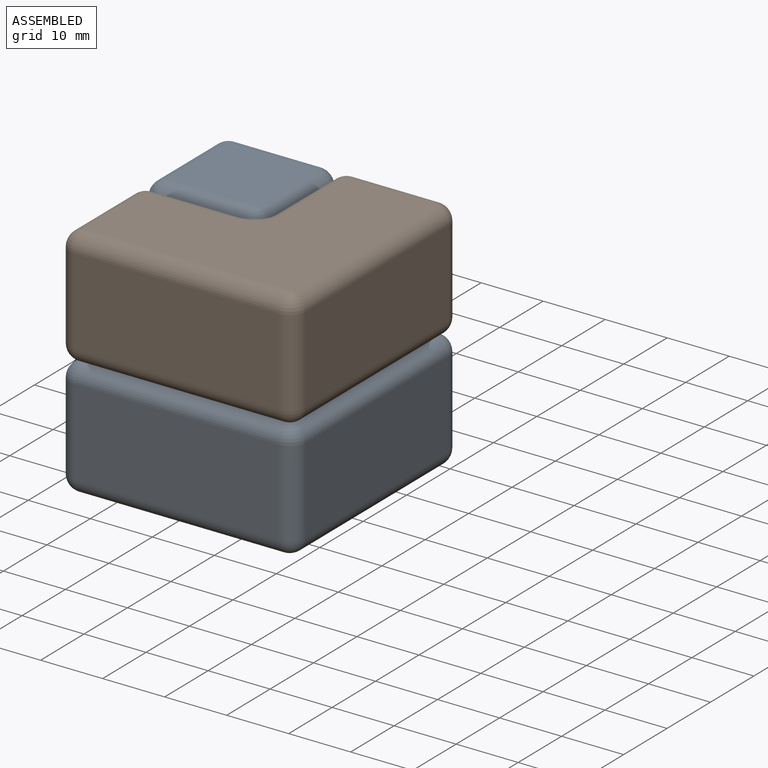
[diagram: assembled view]
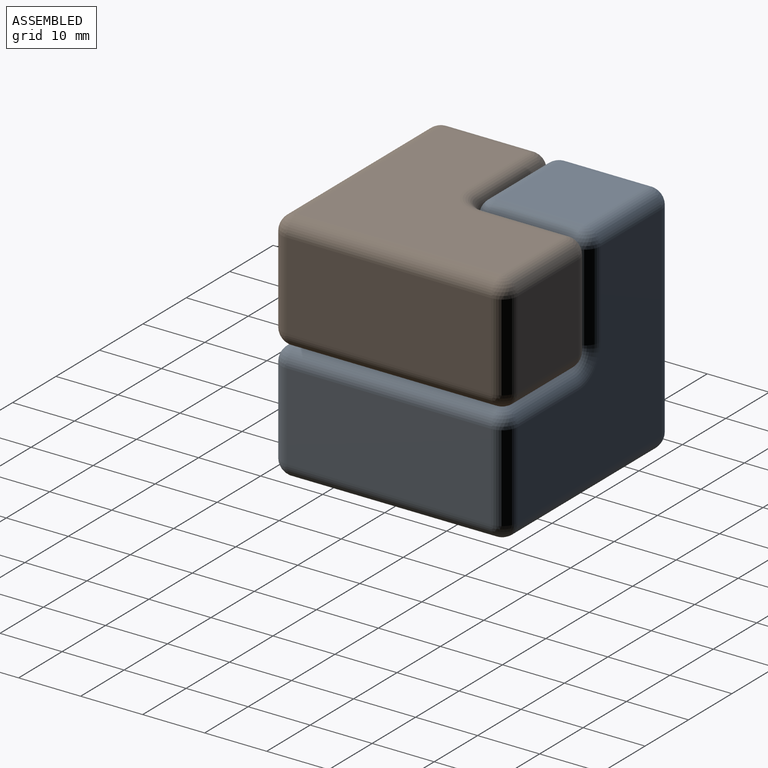
[diagram: assembled view, second angle]
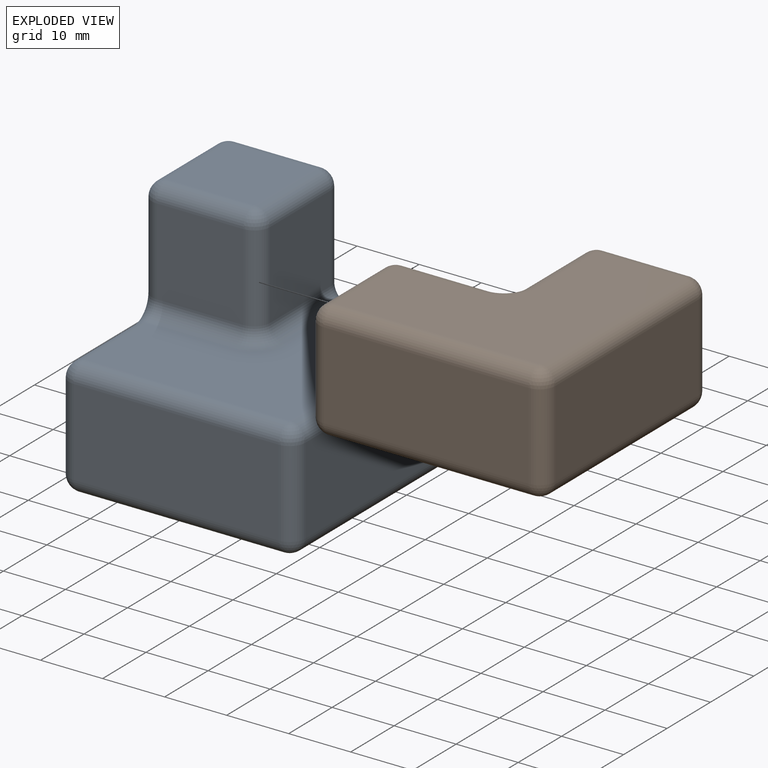
[diagram: exploded view]
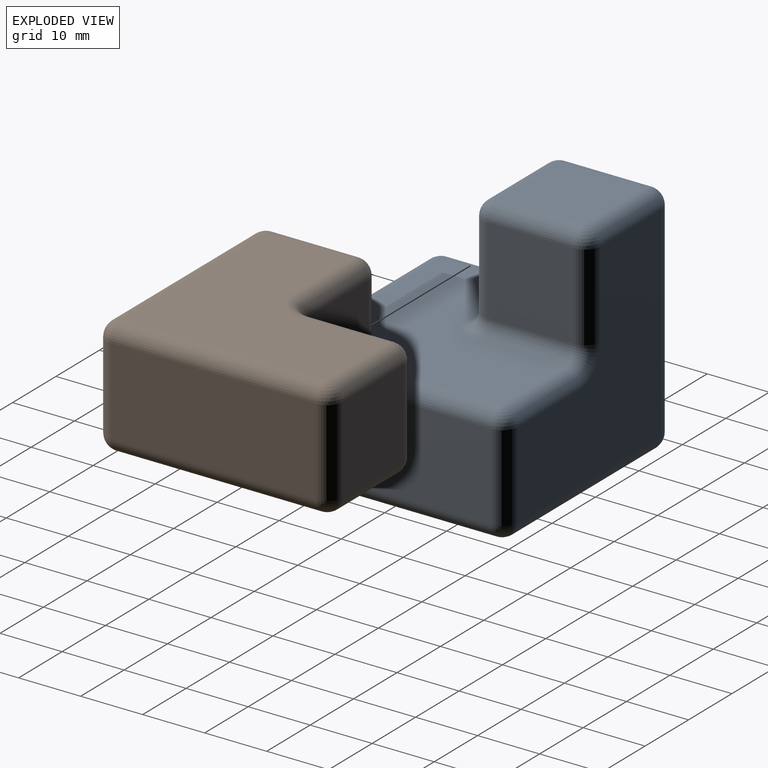
[diagram: exploded view, second angle]
ASSEMBLY  parts=2 mates=2
PART A: 44 faces, bbox 38.1x38.1x38.1 mm
  f0: plane 33.02x33.02mm, normal (0,0,1), area 733mm2, adj f18,f19,f30,f31,f36,f39,f40
  f1: plane 33.02x33.02mm, normal (-1,0,0), area 733mm2, adj f10,f14,f19,f20,f25,f27,f28
  f2: plane 33.02x13.97mm, normal (0,-1,0), area 461.3mm2, adj f9,f10,f17,f18
  f3: plane 33.02x13.97mm, normal (1,0,0), area 461.3mm2, adj f16,f17,f29,f30
  f4: plane 33.02x33.02mm, normal (0,1,0), area 733mm2, adj f15,f28,f29,f38,f39,f42,f43
  f5: plane 33.02x33.02mm, normal (0,0,-1), area 1090.3mm2, adj f9,f14,f15,f16
  f6: plane 13.97x13.97mm, normal (0,-1,0), area 195.2mm2, adj f20,f26,f31,f32
  f7: plane 13.97x13.97mm, normal (1,0,0), area 195.2mm2, adj f32,f37,f40,f43
  f8: plane 13.97x13.97mm, normal (0,0,1), area 195.2mm2, adj f26,f27,f37,f38
  f9: cylinder r=2.54mm len=33.02mm, axis (1,0,0), area 131.7mm2, adj f2,f5,f11,f12
  f10: cylinder r=2.54mm len=13.97mm, axis (0,0,1), area 55.7mm2, adj f1,f2,f11,f13
  f11: sphere r=2.54mm, area 10.1mm2, adj f9,f10,f14
  f12: sphere r=2.54mm, area 10.1mm2, adj f9,f16,f17
  f13: sphere r=2.54mm, area 10.1mm2, adj f10,f18,f19
  f14: cylinder r=2.54mm len=33.02mm, axis (0,-1,0), area 131.7mm2, adj f1,f5,f11,f22
  f15: cylinder r=2.54mm len=33.02mm, axis (-1,0,0), area 131.7mm2, adj f4,f5,f22,f23
  f16: cylinder r=2.54mm len=33.02mm, axis (0,1,0), area 131.7mm2, adj f3,f5,f12,f23
  f17: cylinder r=2.54mm len=13.97mm, axis (0,0,-1), area 55.7mm2, adj f2,f3,f12,f24
  f18: cylinder r=2.54mm len=33.02mm, axis (-1,0,0), area 131.7mm2, adj f0,f2,f13,f24
  f19: cylinder r=2.54mm len=13.97mm, axis (0,1,0), area 55.7mm2, adj f0,f1,f13,f25
  f20: cylinder r=2.54mm len=13.97mm, axis (0,0,1), area 55.7mm2, adj f1,f6,f21,f25
  f21: sphere r=2.54mm, area 10.1mm2, adj f20,f26,f27
  f22: sphere r=2.54mm, area 10.1mm2, adj f14,f15,f28
  f23: sphere r=2.54mm, area 10.1mm2, adj f15,f16,f29
  f24: sphere r=2.54mm, area 10.1mm2, adj f17,f18,f30
  f25: torus R=5.08mm, axis (-1,0,0), area 21.7mm2, adj f1,f19,f20,f31
  f26: cylinder r=2.54mm len=13.97mm, axis (-1,0,0), area 55.7mm2, adj f6,f8,f21,f33
  f27: cylinder r=2.54mm len=13.97mm, axis (0,1,0), area 55.7mm2, adj f1,f8,f21,f34
  f28: cylinder r=2.54mm len=33.02mm, axis (0,0,-1), area 131.7mm2, adj f1,f4,f22,f34
  f29: cylinder r=2.54mm len=13.97mm, axis (0,0,1), area 55.7mm2, adj f3,f4,f23,f35
  f30: cylinder r=2.54mm len=33.02mm, axis (0,-1,0), area 131.7mm2, adj f0,f3,f24,f35
  f31: cylinder r=2.54mm len=13.97mm, axis (1,0,0), area 55.7mm2, adj f0,f6,f25,f36
  f32: cylinder r=2.54mm len=13.97mm, axis (0,0,1), area 55.7mm2, adj f6,f7,f33,f36
  f33: sphere r=2.54mm, area 10.1mm2, adj f26,f32,f37
  f34: sphere r=2.54mm, area 10.1mm2, adj f27,f28,f38
  f35: sphere r=2.54mm, area 10.1mm2, adj f29,f30,f39
  f36: torus R=5.08mm, axis (0,0,1), area 21.7mm2, adj f0,f31,f32,f40
  f37: cylinder r=2.54mm len=13.97mm, axis (0,-1,0), area 55.7mm2, adj f7,f8,f33,f41
  f38: cylinder r=2.54mm len=13.97mm, axis (1,0,0), area 55.7mm2, adj f4,f8,f34,f41
  f39: cylinder r=2.54mm len=13.97mm, axis (1,0,0), area 55.7mm2, adj f0,f4,f35,f42
  f40: cylinder r=2.54mm len=13.97mm, axis (0,1,0), area 55.7mm2, adj f0,f7,f36,f42
  f41: sphere r=2.54mm, area 10.1mm2, adj f37,f38,f43
  f42: torus R=5.08mm, axis (0,1,0), area 21.7mm2, adj f4,f39,f40,f43
  f43: cylinder r=2.54mm len=13.97mm, axis (0,0,-1), area 55.7mm2, adj f4,f7,f41,f42
PART B: 38 faces, bbox 38.1x38.1x19.1 mm
  f0: plane 13.97x13.97mm, normal (0,-1,0), area 195.2mm2, adj f24,f25,f33,f34
  f1: plane 33.02x13.97mm, normal (-1,0,0), area 461.3mm2, adj f11,f12,f21,f22
  f2: plane 33.02x33.02mm, normal (0,0,-1), area 733mm2, adj f8,f11,f15,f20,f25,f26,f30
  f3: plane 13.97x13.97mm, normal (1,0,0), area 195.2mm2, adj f14,f15,f23,f24
  f4: plane 33.02x33.02mm, normal (0,0,1), area 733mm2, adj f13,f22,f23,f32,f33,f36,f37
  f5: plane 33.02x13.97mm, normal (0,1,0), area 461.3mm2, adj f8,f12,f13,f14
  f6: plane 13.97x13.97mm, normal (1,0,0), area 195.2mm2, adj f26,f31,f34,f37
  f7: plane 13.97x13.97mm, normal (0,-1,0), area 195.2mm2, adj f20,f21,f31,f32
  f8: cylinder r=2.54mm len=33.02mm, axis (1,0,0), area 131.7mm2, adj f2,f5,f9,f10
  f9: sphere r=2.54mm, area 10.1mm2, adj f8,f11,f12
  f10: sphere r=2.54mm, area 10.1mm2, adj f8,f14,f15
  f11: cylinder r=2.54mm len=33.02mm, axis (0,-1,0), area 131.7mm2, adj f1,f2,f9,f16
  f12: cylinder r=2.54mm len=13.97mm, axis (0,0,-1), area 55.7mm2, adj f1,f5,f9,f17
  f13: cylinder r=2.54mm len=33.02mm, axis (-1,0,0), area 131.7mm2, adj f4,f5,f17,f18
  f14: cylinder r=2.54mm len=13.97mm, axis (0,0,1), area 55.7mm2, adj f3,f5,f10,f18
  f15: cylinder r=2.54mm len=13.97mm, axis (0,1,0), area 55.7mm2, adj f2,f3,f10,f19
  f16: sphere r=2.54mm, area 10.1mm2, adj f11,f20,f21
  f17: sphere r=2.54mm, area 10.1mm2, adj f12,f13,f22
  f18: sphere r=2.54mm, area 10.1mm2, adj f13,f14,f23
  f19: sphere r=2.54mm, area 10.1mm2, adj f15,f24,f25
  f20: cylinder r=2.54mm len=13.97mm, axis (-1,0,0), area 55.7mm2, adj f2,f7,f16,f27
  f21: cylinder r=2.54mm len=13.97mm, axis (0,0,1), area 55.7mm2, adj f1,f7,f16,f28
  f22: cylinder r=2.54mm len=33.02mm, axis (0,1,0), area 131.7mm2, adj f1,f4,f17,f28
  f23: cylinder r=2.54mm len=13.97mm, axis (0,-1,0), area 55.7mm2, adj f3,f4,f18,f29
  f24: cylinder r=2.54mm len=13.97mm, axis (0,0,-1), area 55.7mm2, adj f0,f3,f19,f29
  f25: cylinder r=2.54mm len=13.97mm, axis (-1,0,0), area 55.7mm2, adj f0,f2,f19,f30
  f26: cylinder r=2.54mm len=13.97mm, axis (0,-1,0), area 55.7mm2, adj f2,f6,f27,f30
  f27: sphere r=2.54mm, area 10.1mm2, adj f20,f26,f31
  f28: sphere r=2.54mm, area 10.1mm2, adj f21,f22,f32
  f29: sphere r=2.54mm, area 10.1mm2, adj f23,f24,f33
  f30: torus R=5.08mm, axis (0,0,1), area 21.7mm2, adj f2,f25,f26,f34
  f31: cylinder r=2.54mm len=13.97mm, axis (0,0,-1), area 55.7mm2, adj f6,f7,f27,f35
  f32: cylinder r=2.54mm len=13.97mm, axis (1,0,0), area 55.7mm2, adj f4,f7,f28,f35
  f33: cylinder r=2.54mm len=13.97mm, axis (1,0,0), area 55.7mm2, adj f0,f4,f29,f36
  f34: cylinder r=2.54mm len=13.97mm, axis (0,0,1), area 55.7mm2, adj f0,f6,f30,f36
  f35: sphere r=2.54mm, area 10.1mm2, adj f31,f32,f37
  f36: torus R=5.08mm, axis (0,0,1), area 21.7mm2, adj f4,f33,f34,f37
  f37: cylinder r=2.54mm len=13.97mm, axis (0,1,0), area 55.7mm2, adj f4,f6,f35,f36
PLACE A t=(3.1,-27.54,3.98)mm
PLACE B rot(axis=(-0.71,-0.71,0),180deg) t=(41.2,-27.54,42.08)mm
MATE planar A.f7 <-> B.f0  axis (1,0,0) through (22.15,1.04,32.56)mm
MATE planar B.f6 <-> A.f6  axis (0,1,0) through (12.63,-8.49,32.56)mm
